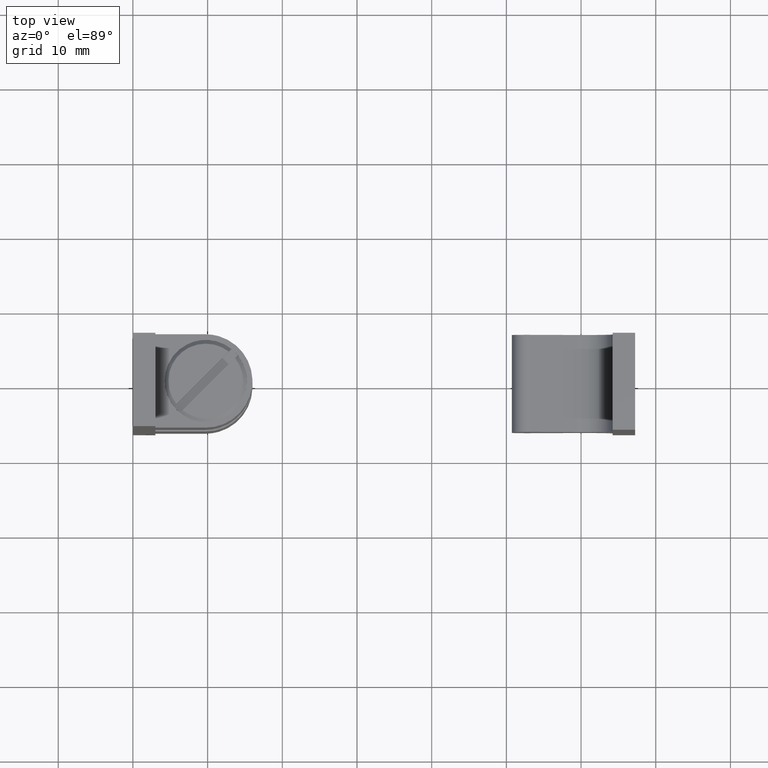
[diagram: clean part render]
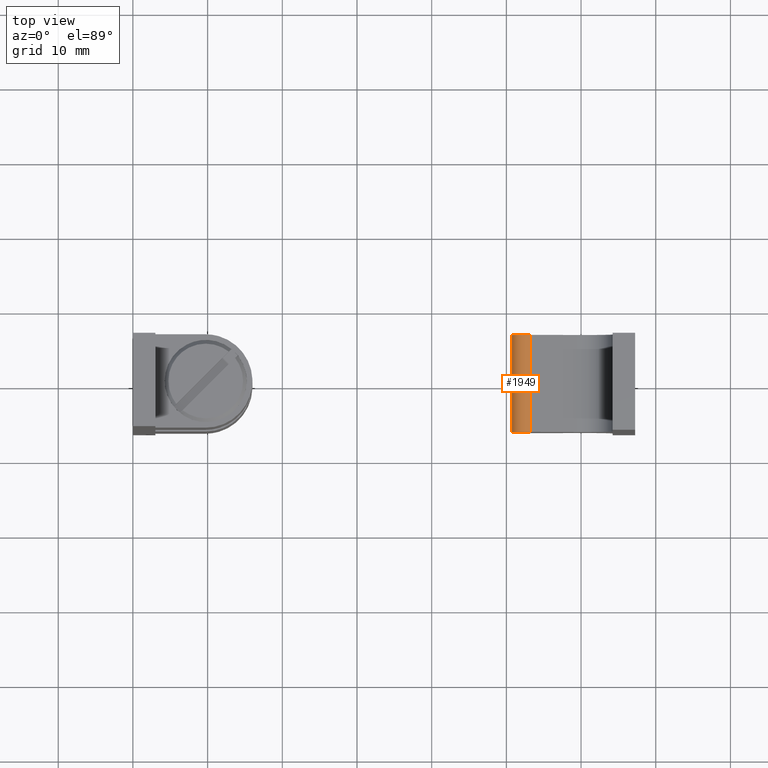
[diagram: same view with one face highlighted and labeled with its STEP entity id]
A machine part, top view. The second image highlights one B-rep face of the part: STEP entity #1949.
In plain terms, the highlighted face is a freeform B-spline surface patch.
Its self-contained STEP definition (entity closure, byte-faithful):
#1513=CARTESIAN_POINT('',(53.187939824608598,6.500000000000000,4.947778338626130));
#1514=VERTEX_POINT('',#1513);
#1613=CARTESIAN_POINT('',(50.733891871657697,6.500000000000000,3.0));
#1614=VERTEX_POINT('',#1613);
#1620=CARTESIAN_POINT('',(53.187939824608598,6.500000000000000,4.947778338626113));
#1621=CARTESIAN_POINT('',(52.247165471710090,6.500000000000000,5.167082897390008));
#1622=CARTESIAN_POINT('',(51.490528671683897,6.500000000000000,4.566540121717568));
#1623=CARTESIAN_POINT('',(50.733891871657711,6.500000000000000,3.965997346045131));
#1624=CARTESIAN_POINT('',(50.733891871657697,6.500000000000000,3.0));
#1632=(BOUNDED_CURVE()B_SPLINE_CURVE(2,(#1620,#1621,#1622,#1623,#1624),.UNSPECIFIED.,.F.,.U.)B_SPLINE_CURVE_WITH_KNOTS((3,2,3),(0.0,0.500000000000000,1.0),.UNSPECIFIED.)CURVE()GEOMETRIC_REPRESENTATION_ITEM()RATIONAL_B_SPLINE_CURVE((1.0,0.900466989952131,1.0,0.900466989952131,1.0))REPRESENTATION_ITEM(''));
#1633=EDGE_CURVE('',#1514,#1614,#1632,.T.);
#1645=CARTESIAN_POINT('',(53.187939824608598,-6.500000000000000,4.947778338626130));
#1646=VERTEX_POINT('',#1645);
#1652=CARTESIAN_POINT('',(50.733891871657697,-6.500000000000000,3.0));
#1653=VERTEX_POINT('',#1652);
#1654=CARTESIAN_POINT('',(53.187939824608598,-6.500000000000000,4.947778338626113));
#1655=CARTESIAN_POINT('',(52.247165471710090,-6.500000000000000,5.167082897390008));
#1656=CARTESIAN_POINT('',(51.490528671683897,-6.500000000000000,4.566540121717568));
#1657=CARTESIAN_POINT('',(50.733891871657711,-6.500000000000000,3.965997346045131));
#1658=CARTESIAN_POINT('',(50.733891871657697,-6.500000000000000,3.0));
#1666=(BOUNDED_CURVE()B_SPLINE_CURVE(2,(#1654,#1655,#1656,#1657,#1658),.UNSPECIFIED.,.F.,.U.)B_SPLINE_CURVE_WITH_KNOTS((3,2,3),(0.0,0.500000000000000,1.0),.UNSPECIFIED.)CURVE()GEOMETRIC_REPRESENTATION_ITEM()RATIONAL_B_SPLINE_CURVE((1.0,0.900466989952131,1.0,0.900466989952131,1.0))REPRESENTATION_ITEM(''));
#1667=EDGE_CURVE('',#1646,#1653,#1666,.T.);
#1917=CARTESIAN_POINT('',(50.733891871657697,-6.500000000000000,3.0));
#1918=CARTESIAN_POINT('',(50.733891871657697,6.500000000000000,3.0));
#1919=QUASI_UNIFORM_CURVE('',1,(#1917,#1918),.UNSPECIFIED.,.F.,.U.);
#1920=EDGE_CURVE('',#1653,#1614,#1919,.T.);
#1925=CARTESIAN_POINT('',(53.238771126600632,-6.825000000000001,4.935225293842624));
#1926=CARTESIAN_POINT('',(53.238771126600632,6.833125000000001,4.935225293842624));
#1927=CARTESIAN_POINT('',(50.575162020117126,-6.825000000000002,5.630131972367030));
#1928=CARTESIAN_POINT('',(50.575162020117126,6.833125000000002,5.630131972367030));
#1929=CARTESIAN_POINT('',(50.737366975564747,-6.825000000000001,2.882151201614093));
#1930=CARTESIAN_POINT('',(50.737366975564747,6.833125000000001,2.882151201614093));
#1938=(BOUNDED_SURFACE()B_SPLINE_SURFACE(1,2,((#1925,#1927,#1929),(#1926,#1928,#1930)),.UNSPECIFIED.,.F.,.F.,.U.)B_SPLINE_SURFACE_WITH_KNOTS((2,2),(3,3),(0.0,13.658125000000000),(0.0,4.076203595955414),.UNSPECIFIED.)GEOMETRIC_REPRESENTATION_ITEM()RATIONAL_B_SPLINE_SURFACE(((1.0,0.587785252292473,1.0),(1.0,0.587785252292473,1.0)))REPRESENTATION_ITEM('')SURFACE());
#1939=ORIENTED_EDGE('',*,*,#1633,.T.);
#1940=ORIENTED_EDGE('',*,*,#1920,.F.);
#1941=ORIENTED_EDGE('',*,*,#1667,.F.);
#1942=CARTESIAN_POINT('',(53.187939824608598,-6.500000000000000,4.947778338626130));
#1943=CARTESIAN_POINT('',(53.187939824608598,6.500000000000000,4.947778338626130));
#1944=QUASI_UNIFORM_CURVE('',1,(#1942,#1943),.UNSPECIFIED.,.F.,.U.);
#1945=EDGE_CURVE('',#1646,#1514,#1944,.T.);
#1946=ORIENTED_EDGE('',*,*,#1945,.T.);
#1947=EDGE_LOOP('',(#1939,#1940,#1941,#1946));
#1948=FACE_OUTER_BOUND('',#1947,.T.);
#1949=ADVANCED_FACE('',(#1948),#1938,.T.);